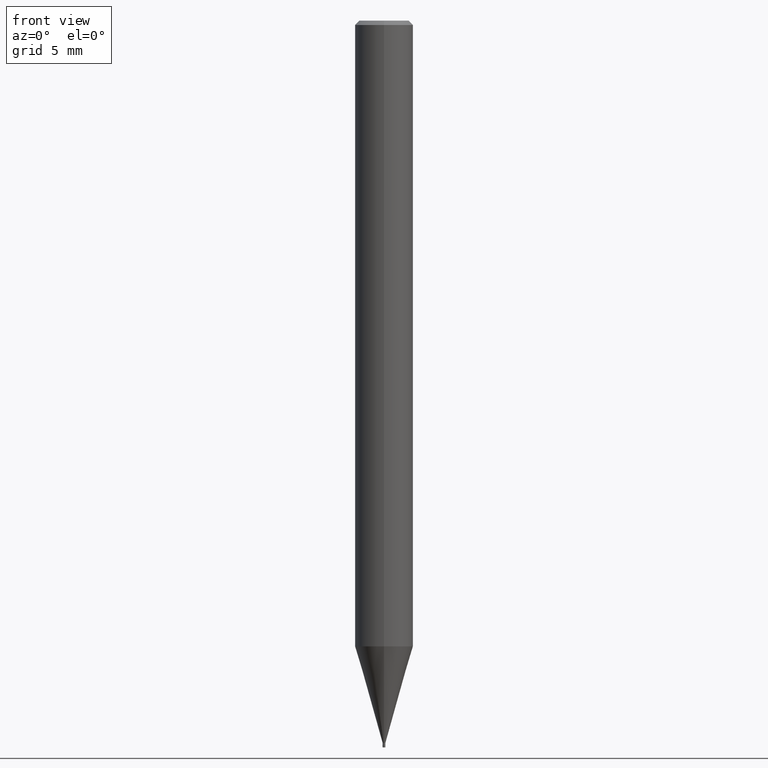
[diagram: clean part render]
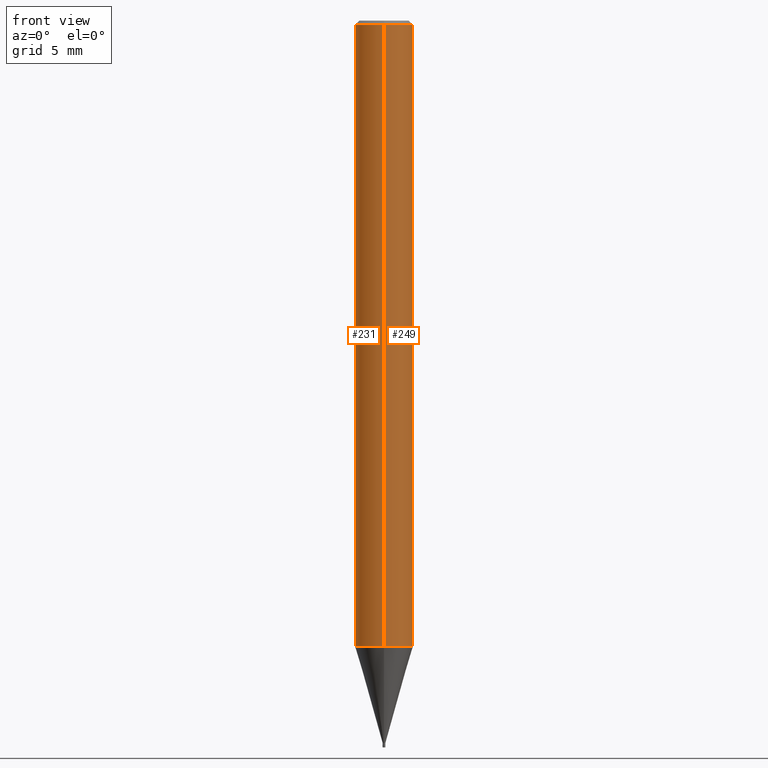
[diagram: same view with one multi-face feature highlighted, each face labeled with its STEP entity id]
A machine part, front view. The highlighted faces form ONE feature: a constant-radius fillet chain: 2 tangent blend faces with common blend radius 2 mm. The faces share edges in the B-rep.
Their STEP definitions:
[1] entity #231 (Cylinder):
#147=VERTEX_POINT('',#382);
#221=EDGE_CURVE('',#251,#245,#460,.T.);
#223=EDGE_CURVE('',#147,#269,#462,.T.);
#231=ADVANCED_FACE('',(#471),#472,.T.);
#245=VERTEX_POINT('',#486);
#251=VERTEX_POINT('',#493);
#257=EDGE_CURVE('',#269,#245,#500,.T.);
#269=VERTEX_POINT('',#512);
#335=EDGE_CURVE('',#251,#147,#597,.T.);
#382=CARTESIAN_POINT('',(2.44921270764475E-016,-2.0,-0.289999999999999));
#460=CIRCLE('',#745,2.0);
#462=CIRCLE('',#748,2.0);
#471=FACE_OUTER_BOUND('',#759,.T.);
#472=CYLINDRICAL_SURFACE('',#760,2.0);
#486=CARTESIAN_POINT('',(0.0,2.0,-43.038));
#493=CARTESIAN_POINT('',(2.44921270764475E-016,-2.0,-43.038));
#500=LINE('',#793,#794);
#512=CARTESIAN_POINT('',(0.0,2.0,-0.289999999999999));
#597=LINE('',#913,#914);
#745=AXIS2_PLACEMENT_3D('',#1027,#1028,#1029);
#748=AXIS2_PLACEMENT_3D('',#1030,#1031,#1032);
#759=EDGE_LOOP('',(#1048,#1049,#1050,#1051));
#760=AXIS2_PLACEMENT_3D('',#1052,#1053,#1054);
#793=CARTESIAN_POINT('',(-2.44921270764475E-016,2.0,-21.664));
#794=VECTOR('',#1077,1.0);
#913=CARTESIAN_POINT('',(2.44921270764475E-016,-2.0,-21.664));
#914=VECTOR('',#1229,1.0);
#1027=CARTESIAN_POINT('',(0.0,0.0,-43.038));
#1028=DIRECTION('',(0.0,0.0,-1.0));
#1029=DIRECTION('',(0.0,1.0,0.0));
#1030=CARTESIAN_POINT('',(0.0,0.0,-0.289999999999999));
#1031=DIRECTION('',(0.0,0.0,-1.0));
#1032=DIRECTION('',(0.0,1.0,0.0));
#1048=ORIENTED_EDGE('',*,*,#257,.T.);
#1049=ORIENTED_EDGE('',*,*,#221,.F.);
#1050=ORIENTED_EDGE('',*,*,#335,.T.);
#1051=ORIENTED_EDGE('',*,*,#223,.T.);
#1052=CARTESIAN_POINT('',(0.0,0.0,-21.664));
#1053=DIRECTION('',(-0.0,-0.0,1.0));
#1054=DIRECTION('',(0.0,1.0,0.0));
#1077=DIRECTION('',(0.0,0.0,-1.0));
#1229=DIRECTION('',(-0.0,-0.0,1.0));
[2] entity #249 (Cylinder):
#147=VERTEX_POINT('',#382);
#209=EDGE_CURVE('',#245,#251,#447,.T.);
#245=VERTEX_POINT('',#486);
#249=ADVANCED_FACE('',(#490),#491,.T.);
#251=VERTEX_POINT('',#493);
#257=EDGE_CURVE('',#269,#245,#500,.T.);
#269=VERTEX_POINT('',#512);
#273=EDGE_CURVE('',#269,#147,#517,.T.);
#335=EDGE_CURVE('',#251,#147,#597,.T.);
#382=CARTESIAN_POINT('',(2.44921270764475E-016,-2.0,-0.289999999999999));
#447=CIRCLE('',#729,2.0);
#486=CARTESIAN_POINT('',(0.0,2.0,-43.038));
#490=FACE_OUTER_BOUND('',#781,.T.);
#491=CYLINDRICAL_SURFACE('',#782,2.0);
#493=CARTESIAN_POINT('',(2.44921270764475E-016,-2.0,-43.038));
#500=LINE('',#793,#794);
#512=CARTESIAN_POINT('',(0.0,2.0,-0.289999999999999));
#517=CIRCLE('',#813,2.0);
#597=LINE('',#913,#914);
#729=AXIS2_PLACEMENT_3D('',#1015,#1016,#1017);
#781=EDGE_LOOP('',(#1059,#1060,#1061,#1062));
#782=AXIS2_PLACEMENT_3D('',#1063,#1064,#1065);
#793=CARTESIAN_POINT('',(-2.44921270764475E-016,2.0,-21.664));
#794=VECTOR('',#1077,1.0);
#813=AXIS2_PLACEMENT_3D('',#1089,#1090,#1091);
#913=CARTESIAN_POINT('',(2.44921270764475E-016,-2.0,-21.664));
#914=VECTOR('',#1229,1.0);
#1015=CARTESIAN_POINT('',(0.0,0.0,-43.038));
#1016=DIRECTION('',(0.0,0.0,-1.0));
#1017=DIRECTION('',(0.0,1.0,0.0));
#1059=ORIENTED_EDGE('',*,*,#257,.F.);
#1060=ORIENTED_EDGE('',*,*,#273,.T.);
#1061=ORIENTED_EDGE('',*,*,#335,.F.);
#1062=ORIENTED_EDGE('',*,*,#209,.F.);
#1063=CARTESIAN_POINT('',(0.0,0.0,-21.664));
#1064=DIRECTION('',(-0.0,-0.0,1.0));
#1065=DIRECTION('',(0.0,1.0,0.0));
#1077=DIRECTION('',(0.0,0.0,-1.0));
#1089=CARTESIAN_POINT('',(0.0,0.0,-0.289999999999999));
#1090=DIRECTION('',(0.0,0.0,-1.0));
#1091=DIRECTION('',(0.0,1.0,0.0));
#1229=DIRECTION('',(-0.0,-0.0,1.0));